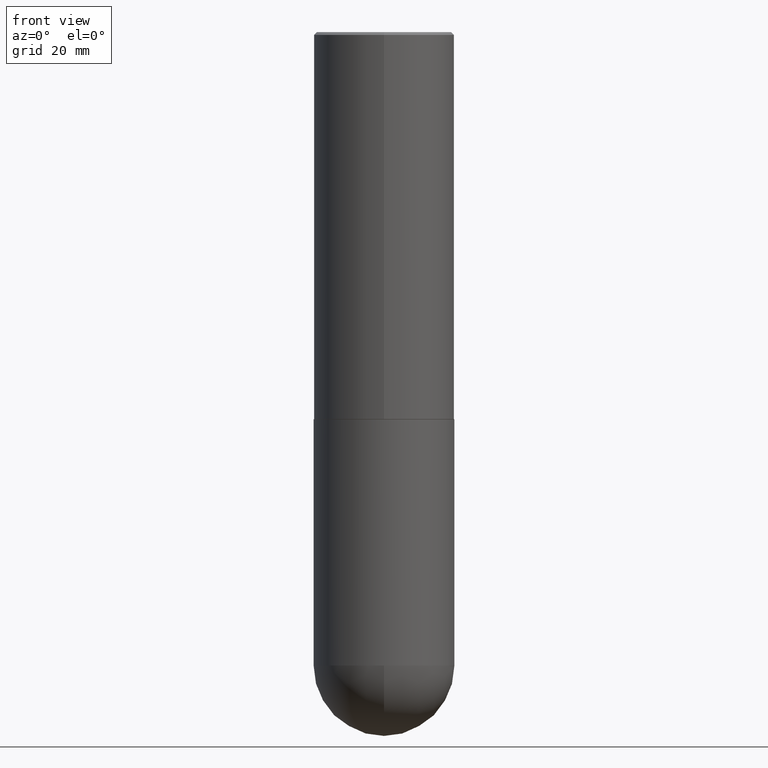
[diagram: clean part render]
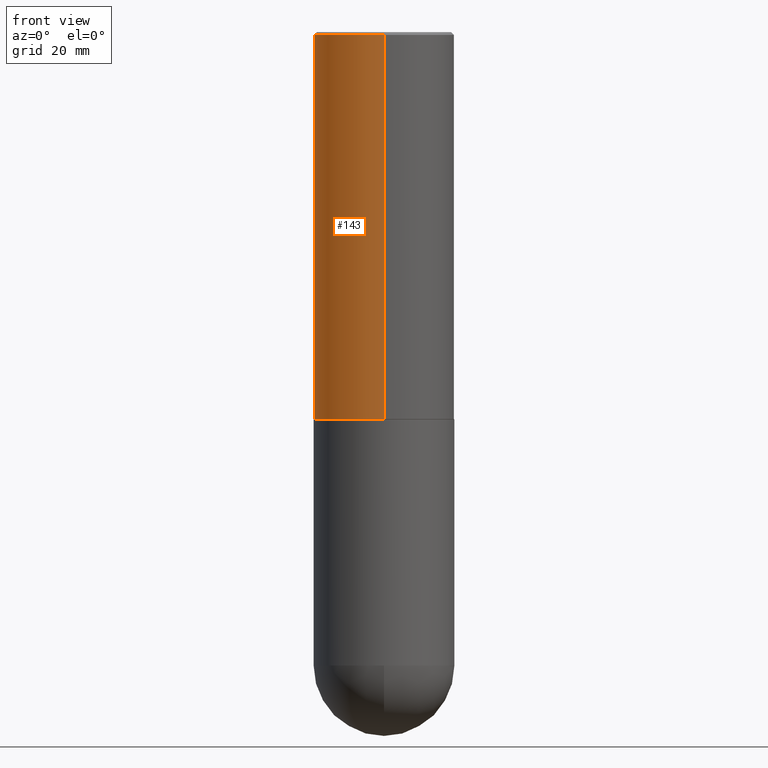
[diagram: same view with one face highlighted and labeled with its STEP entity id]
A machine part, front view. The second image highlights one B-rep face of the part: STEP entity #143.
In plain terms, the highlighted cylindrical surface (partial cylindrical patch) has radius 12.7 mm, axis along (-0, 0, 1).
Its self-contained STEP definition (entity closure, byte-faithful):
#10 = EDGE_CURVE ( 'NONE', #255, #55, #181, .T. ) ;
#23 = DIRECTION ( 'NONE',  ( -6.982962677686265922E-15, -1.000000000000000000, 3.491643216902136802E-15 ) ) ;
#46 = CARTESIAN_POINT ( 'NONE',  ( 3.552713678800535639E-15, 0.4999999999999907296, -2.749000000000001886 ) ) ;
#47 = DIRECTION ( 'NONE',  ( -2.444827589865469410E-29, 3.492399597108675869E-15, 1.000000000000000000 ) ) ;
#48 = DIRECTION ( 'NONE',  ( -6.982962677686265922E-15, -1.000000000000000000, 3.278217592397113496E-15 ) ) ;
#55 = VERTEX_POINT ( 'NONE', #360 ) ;
#63 = DIRECTION ( 'NONE',  ( -2.444827589865469410E-29, 3.492399597108675869E-15, 1.000000000000000000 ) ) ;
#79 = EDGE_CURVE ( 'NONE', #99, #55, #173, .T. ) ;
#99 = VERTEX_POINT ( 'NONE', #338 ) ;
#104 = CARTESIAN_POINT ( 'NONE',  ( 3.552713678800501718E-15, 0.5000000000000001110, -1.746199798554338132E-15 ) ) ;
#117 = CARTESIAN_POINT ( 'NONE',  ( 6.720831044540175662E-29, -9.600606492451749186E-15, -2.749000000000000110 ) ) ;
#135 = DIRECTION ( 'NONE',  ( -2.444827589865469410E-29, 3.492399597108675474E-15, 1.000000000000000000 ) ) ;
#136 = DIRECTION ( 'NONE',  ( -6.982962677686265922E-15, -1.000000000000000000, 3.492399597108675474E-15 ) ) ;
#139 = LINE ( 'NONE', #104, #212 ) ;
#143 = ADVANCED_FACE ( 'NONE', ( #205 ), #253, .T. ) ;
#146 = DIRECTION ( 'NONE',  ( -2.444827589865469410E-29, 3.492399597108675474E-15, 1.000000000000000000 ) ) ;
#154 = VECTOR ( 'NONE', #47, 39.37007874015748143 ) ;
#173 = CIRCLE ( 'NONE', #302, 0.4999999999999999445 ) ;
#181 = LINE ( 'NONE', #270, #154 ) ;
#186 = CARTESIAN_POINT ( 'NONE',  ( 4.889655179730964743E-31, -6.984799194217388025E-17, -0.02000000000000010797 ) ) ;
#195 = ORIENTED_EDGE ( 'NONE', *, *, #342, .T. ) ;
#201 = EDGE_LOOP ( 'NONE', ( #395, #195, #389, #379 ) ) ;
#205 = FACE_OUTER_BOUND ( 'NONE', #201, .T. ) ;
#212 = VECTOR ( 'NONE', #63, 39.37007874015748143 ) ;
#219 = AXIS2_PLACEMENT_3D ( 'NONE', #117, #263, #48 ) ;
#227 = EDGE_CURVE ( 'NONE', #287, #99, #139, .T. ) ;
#253 = CYLINDRICAL_SURFACE ( 'NONE', #357, 0.5000000000000001110 ) ;
#255 = VERTEX_POINT ( 'NONE', #334 ) ;
#263 = DIRECTION ( 'NONE',  ( -2.444827589865469410E-29, 3.492399597108675474E-15, 1.000000000000000000 ) ) ;
#270 = CARTESIAN_POINT ( 'NONE',  ( -3.491481338843133750E-15, -0.5000000000000001110, 1.746199798554338132E-15 ) ) ;
#287 = VERTEX_POINT ( 'NONE', #46 ) ;
#301 = CARTESIAN_POINT ( 'NONE',  ( 0.000000000000000000, 0.000000000000000000, 0.000000000000000000 ) ) ;
#302 = AXIS2_PLACEMENT_3D ( 'NONE', #186, #146, #23 ) ;
#320 = CIRCLE ( 'NONE', #219, 0.5000000000000003331 ) ;
#334 = CARTESIAN_POINT ( 'NONE',  ( -3.491481338843068274E-15, -0.5000000000000099920, -2.748999999999998334 ) ) ;
#338 = CARTESIAN_POINT ( 'NONE',  ( 3.491481338843132961E-15, 0.4999999999999998335, -0.02000000000000185310 ) ) ;
#342 = EDGE_CURVE ( 'NONE', #287, #255, #320, .T. ) ;
#357 = AXIS2_PLACEMENT_3D ( 'NONE', #301, #135, #136 ) ;
#360 = CARTESIAN_POINT ( 'NONE',  ( -3.430248998885764598E-15, -0.5000000000000000000, -0.01999999999999835937 ) ) ;
#379 = ORIENTED_EDGE ( 'NONE', *, *, #79, .F. ) ;
#389 = ORIENTED_EDGE ( 'NONE', *, *, #10, .T. ) ;
#395 = ORIENTED_EDGE ( 'NONE', *, *, #227, .F. ) ;